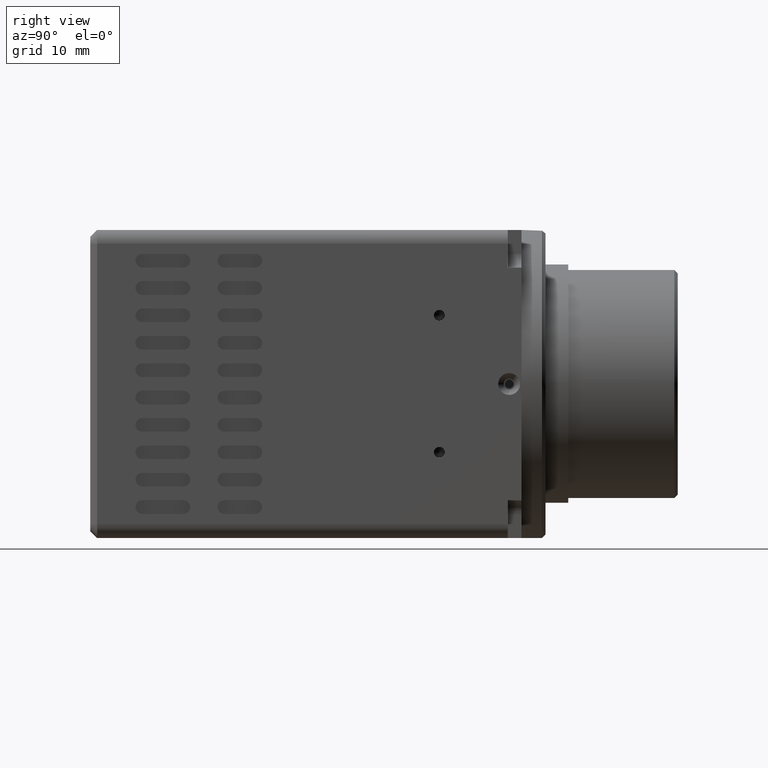
[diagram: clean part render]
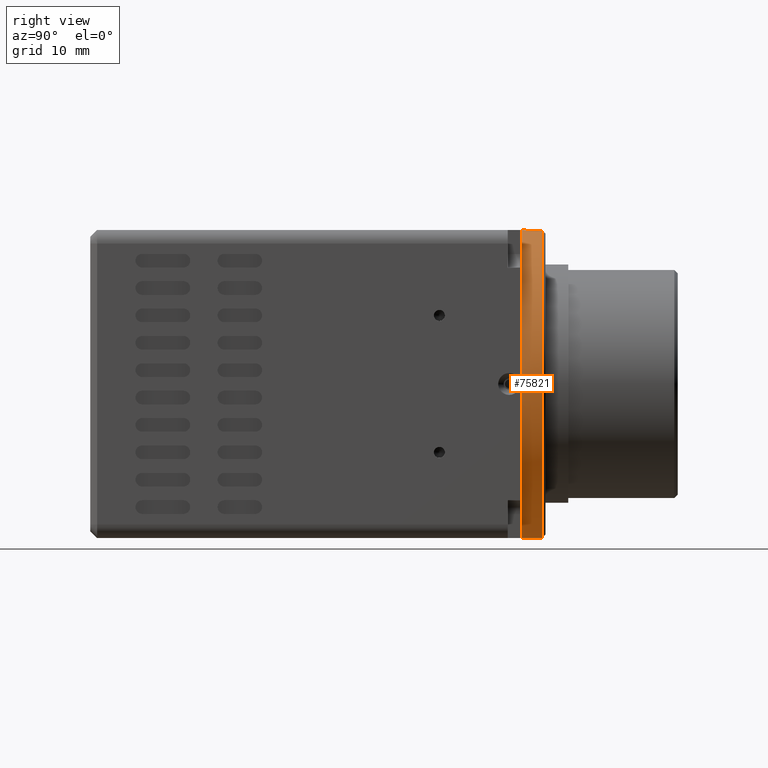
[diagram: same view with one face highlighted and labeled with its STEP entity id]
A machine part, right view. The second image highlights one B-rep face of the part: STEP entity #75821.
In plain terms, the highlighted cylindrical surface (bore or boss wall) has radius 22.5 mm, axis along (0, 1, 0).
Its self-contained STEP definition (entity closure, byte-faithful):
#587 = EDGE_CURVE ( 'NONE', #7040, #70748, #7779, .T. ) ;
#2248 = CARTESIAN_POINT ( 'NONE',  ( 22.49999791572821550, 20.90020000000000167, 4.525436799392864136E-06 ) ) ;
#3342 = AXIS2_PLACEMENT_3D ( 'NONE', #63788, #41378, #90921 ) ;
#5771 = DIRECTION ( 'NONE',  ( 0.000000000000000000, 0.000000000000000000, 1.000000000000000000 ) ) ;
#7040 = VERTEX_POINT ( 'NONE', #56877 ) ;
#7779 = CIRCLE ( 'NONE', #54057, 22.50000000000000000 ) ;
#8445 = CIRCLE ( 'NONE', #83073, 22.49999999999996092 ) ;
#10560 = EDGE_CURVE ( 'NONE', #70748, #51463, #70130, .T. ) ;
#11837 = AXIS2_PLACEMENT_3D ( 'NONE', #76848, #41313, #5771 ) ;
#13689 = CIRCLE ( 'NONE', #3342, 22.50000000000000000 ) ;
#14336 = DIRECTION ( 'NONE',  ( 1.305622277003300475E-13, 0.000000000000000000, 1.000000000000000000 ) ) ;
#16199 = EDGE_CURVE ( 'NONE', #23191, #7040, #13689, .T. ) ;
#19797 = FACE_OUTER_BOUND ( 'NONE', #70349, .T. ) ;
#21453 = DIRECTION ( 'NONE',  ( -0.000000000000000000, 1.000000000000000000, -0.000000000000000000 ) ) ;
#22718 = DIRECTION ( 'NONE',  ( -0.000000000000000000, -1.000000000000000000, -0.000000000000000000 ) ) ;
#23191 = VERTEX_POINT ( 'NONE', #24334 ) ;
#23837 = AXIS2_PLACEMENT_3D ( 'NONE', #64814, #22718, #14336 ) ;
#23912 = ORIENTED_EDGE ( 'NONE', *, *, #24367, .F. ) ;
#24334 = CARTESIAN_POINT ( 'NONE',  ( -22.50000208427178094, 20.90020000000000167, 4.527382889923928428E-06 ) ) ;
#24367 = EDGE_CURVE ( 'NONE', #47988, #47988, #8445, .T. ) ;
#25936 = CARTESIAN_POINT ( 'NONE',  ( -2.084271784497000633E-06, 20.90020000000000167, 4.525436798704000192E-06 ) ) ;
#27877 = DIRECTION ( 'NONE',  ( 0.000000000000000000, 0.000000000000000000, 1.000000000000000000 ) ) ;
#28918 = CARTESIAN_POINT ( 'NONE',  ( -2.084271784497000633E-06, 23.90019999999996259, 4.525436798704000192E-06 ) ) ;
#30831 = ORIENTED_EDGE ( 'NONE', *, *, #16199, .F. ) ;
#31177 = ORIENTED_EDGE ( 'NONE', *, *, #587, .F. ) ;
#34291 = FACE_OUTER_BOUND ( 'NONE', #88886, .T. ) ;
#34902 = CARTESIAN_POINT ( 'NONE',  ( -2.084271784497000633E-06, 20.90020000000000167, 4.525436798704000192E-06 ) ) ;
#41313 = DIRECTION ( 'NONE',  ( 0.000000000000000000, 1.000000000000000000, 0.000000000000000000 ) ) ;
#41378 = DIRECTION ( 'NONE',  ( -0.000000000000000000, -1.000000000000000000, -0.000000000000000000 ) ) ;
#46441 = ORIENTED_EDGE ( 'NONE', *, *, #59585, .F. ) ;
#47988 = VERTEX_POINT ( 'NONE', #76492 ) ;
#48342 = CYLINDRICAL_SURFACE ( 'NONE', #11837, 22.50000000000000000 ) ;
#51463 = VERTEX_POINT ( 'NONE', #65301 ) ;
#52428 = CIRCLE ( 'NONE', #58347, 22.50000000000000000 ) ;
#54057 = AXIS2_PLACEMENT_3D ( 'NONE', #34902, #91920, #27877 ) ;
#54477 = DIRECTION ( 'NONE',  ( -0.000000000000000000, -1.000000000000000000, -0.000000000000000000 ) ) ;
#56877 = CARTESIAN_POINT ( 'NONE',  ( -2.084271043710738345E-06, 20.90020000000000167, -22.49999547456319959 ) ) ;
#58347 = AXIS2_PLACEMENT_3D ( 'NONE', #25936, #54477, #86191 ) ;
#59585 = EDGE_CURVE ( 'NONE', #51463, #23191, #52428, .T. ) ;
#63788 = CARTESIAN_POINT ( 'NONE',  ( -2.084271784497000633E-06, 20.90020000000000167, 4.525436798704000192E-06 ) ) ;
#64814 = CARTESIAN_POINT ( 'NONE',  ( -2.084271784497000633E-06, 20.90020000000000167, 4.525436798704000192E-06 ) ) ;
#65301 = CARTESIAN_POINT ( 'NONE',  ( -2.084272764615764560E-06, 20.90020000000000167, 22.50000452543680041 ) ) ;
#69306 = DIRECTION ( 'NONE',  ( 0.000000000000000000, 0.000000000000000000, -1.000000000000000000 ) ) ;
#70130 = CIRCLE ( 'NONE', #23837, 22.50000000000000000 ) ;
#70349 = EDGE_LOOP ( 'NONE', ( #30831, #46441, #81925, #31177 ) ) ;
#70748 = VERTEX_POINT ( 'NONE', #2248 ) ;
#75821 = ADVANCED_FACE ( 'NONE', ( #19797, #34291 ), #48342, .T. ) ;
#76492 = CARTESIAN_POINT ( 'NONE',  ( -2.084271784497000633E-06, 23.90019999999996259, -22.49999547456316051 ) ) ;
#76848 = CARTESIAN_POINT ( 'NONE',  ( -2.084271784497000633E-06, 18.90019999999999811, 4.525436798704000192E-06 ) ) ;
#81925 = ORIENTED_EDGE ( 'NONE', *, *, #10560, .F. ) ;
#83073 = AXIS2_PLACEMENT_3D ( 'NONE', #28918, #21453, #69306 ) ;
#86191 = DIRECTION ( 'NONE',  ( -4.352074256677668040E-14, 0.000000000000000000, 1.000000000000000000 ) ) ;
#88886 = EDGE_LOOP ( 'NONE', ( #23912 ) ) ;
#90921 = DIRECTION ( 'NONE',  ( 0.000000000000000000, 0.000000000000000000, 1.000000000000000000 ) ) ;
#91920 = DIRECTION ( 'NONE',  ( -0.000000000000000000, -1.000000000000000000, -0.000000000000000000 ) ) ;